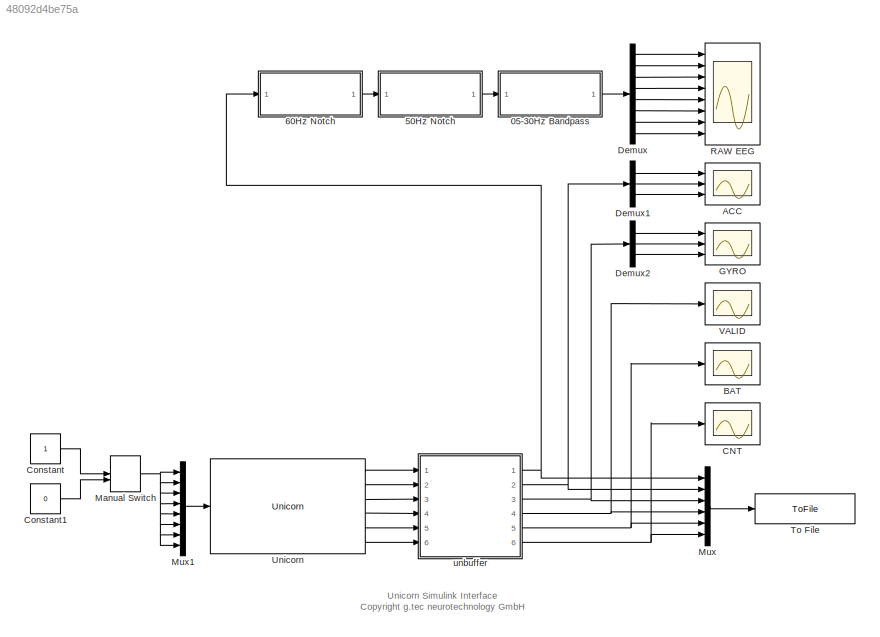
MODEL slx_48092d4be75a
KIND model
CONFIG AbsTol = auto
CONFIG FixedStep = auto
CONFIG MaxStep = auto
CONFIG MinStep = auto
CONFIG RelTol = 1e-3
CONFIG SampleTimeConstraint = Unconstrained
CONFIG Solver = FixedStepDiscrete
CONFIG SolverMode = Auto
CONFIG SolverName = FixedStepDiscrete
CONFIG StartTime = 0.0
CONFIG StopTime = inf
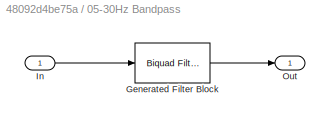
BLOCK [SubSystem] 05-30Hz Bandpass
  CopyFcn = fdesignblkfcn(gcbh, {'CopyFcn'});
  DialogController = fdesignblkfcn
  InitFcn = fdesignblkfcn(gcbh, {'InitFcn'});
  Ports = [1, 1]
  RequestExecContextInheritance = off
  UserDataPersistent = on
BLOCK [Reference] 05-30Hz Bandpass/Generated Filter Block  REF=dsparch4/Biquad Filter
  BiQuadCoeffs = [0.4322526152450743 0 -0.4322526152450743 1 -1.0011806751735479 0.3599418394747359;0.089147308745349971 0 -0.089147308745349971 1 -0.90316691443797437 0.21573805671244461;0.0088211325061849071 0 -0.0088211325061849071 1 -1.9935355151831708 0.99369356215971294;0.012337659349727709 0 -0.012337659349727709 1 -1.9822422643876501 0.98240374527709184;2 0 -2 1 -1.9751756853515128 0.97534142261558909;2 0 ...<+45ch>
  CoeffSource = Specify via dialog
  FilterObject = Hm_biquad
  FilterSource = Specify via dialog
  IC = 0
  ICden = 0
  ICnum = 0
  IIRFiltStruct = Direct form II
  InputProcessing = Elements as channels (sample based)
  LockScale = off
  Ports = [1, 1]
  ScaleValueMode = Specify via input port (g)
  ScaleValues = [0.35278894395693888;1;1;1;1;1;133.18750137787509]
  SourceBlock = dsparch4/Biquad Filter
  SourceType = Biquad Filter
  Tag = BlockMethodSubSystem
  UserDataPersistent = on
  a0Flag = Warning
  accumFracLength = 30
  accumMode = Same as product output
  accumWordLength = 32
  allowOverrides = on
  denAccumFracLength = 30
  denProdOutputFracLength = 30
  firstCoeffFracLength = 15
  firstCoeffMode = Same word length as input
  firstCoeffWordLength = 16
  memoryFracLength = 15
  memoryMode = Same as accumulator
  memoryWordLength = 16
  multiplicandFracLength = 30
  multiplicandMode = Same as output
  multiplicandWordLength = 32
  optimizeScaleValues = on
  outputFracLength = 15
  outputMode = Same as accumulator
  outputWordLength = 16
  overflowMode = off
  prodOutputFracLength = 30
  prodOutputMode = Same as input
  prodOutputWordLength = 32
  roundingMode = Floor
  scaleValueFracLength = 14
  secondCoeffFracLength = 15
  secondCoeffMode = Same as numerator
  secondCoeffWordLength = 16
  secondMemoryFracLength = 15
  stageInputFracLength = 15
  stageInputMode = Same as input
  stageInputWordLength = 16
  stageOutputFracLength = 15
  stageOutputMode = Same as section input
  stageOutputWordLength = 16
BLOCK [Inport] 05-30Hz Bandpass/In
  IconDisplay = Port number
BLOCK [Outport] 05-30Hz Bandpass/Out
  IconDisplay = Port number
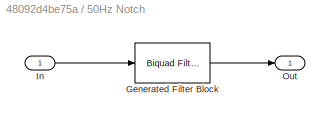
BLOCK [SubSystem] 50Hz Notch
  CopyFcn = fdesignblkfcn(gcbh, {'CopyFcn'});
  DialogController = fdesignblkfcn
  InitFcn = fdesignblkfcn(gcbh, {'InitFcn'});
  Ports = [1, 1]
  RequestExecContextInheritance = off
  UserDataPersistent = on
BLOCK [Reference] 50Hz Notch/Generated Filter Block  REF=dsparch4/Biquad Filter
  BiQuadCoeffs = [2 -1.2376311593598059 1.9999999999999996 1 -0.58917542534408363 0.90420359373902093]
  CoeffSource = Specify via dialog
  FilterObject = Hm_biquad
  FilterSource = Specify via dialog
  IC = 0
  ICden = 0
  ICnum = 0
  IIRFiltStruct = Direct form II
  InputProcessing = Elements as channels (sample based)
  LockScale = off
  Ports = [1, 1]
  ScaleValueMode = Specify via input port (g)
  ScaleValues = [0.091083863875771748;5.226511899890804]
  SourceBlock = dsparch4/Biquad Filter
  SourceType = Biquad Filter
  Tag = BlockMethodSubSystem
  UserDataPersistent = on
  a0Flag = Warning
  accumFracLength = 30
  accumMode = Same as product output
  accumWordLength = 32
  allowOverrides = on
  denAccumFracLength = 30
  denProdOutputFracLength = 30
  firstCoeffFracLength = 15
  firstCoeffMode = Same word length as input
  firstCoeffWordLength = 16
  memoryFracLength = 15
  memoryMode = Same as accumulator
  memoryWordLength = 16
  multiplicandFracLength = 30
  multiplicandMode = Same as output
  multiplicandWordLength = 32
  optimizeScaleValues = on
  outputFracLength = 15
  outputMode = Same as accumulator
  outputWordLength = 16
  overflowMode = off
  prodOutputFracLength = 30
  prodOutputMode = Same as input
  prodOutputWordLength = 32
  roundingMode = Floor
  scaleValueFracLength = 14
  secondCoeffFracLength = 15
  secondCoeffMode = Same as numerator
  secondCoeffWordLength = 16
  secondMemoryFracLength = 15
  stageInputFracLength = 15
  stageInputMode = Same as input
  stageInputWordLength = 16
  stageOutputFracLength = 15
  stageOutputMode = Same as section input
  stageOutputWordLength = 16
BLOCK [Inport] 50Hz Notch/In
  IconDisplay = Port number
BLOCK [Outport] 50Hz Notch/Out
  IconDisplay = Port number
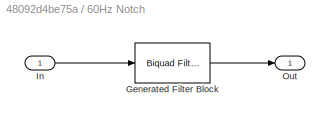
BLOCK [SubSystem] 60Hz Notch
  CopyFcn = fdesignblkfcn(gcbh, {'CopyFcn'});
  DialogController = fdesignblkfcn
  InitFcn = fdesignblkfcn(gcbh, {'InitFcn'});
  Ports = [1, 1]
  RequestExecContextInheritance = off
  UserDataPersistent = on
BLOCK [Reference] 60Hz Notch/Generated Filter Block  REF=dsparch4/Biquad Filter
  BiQuadCoeffs = [1.9999999999999998 -0.25147970790103907 2 1 -0.11971714088439944 0.90420359373902071]
  CoeffSource = Specify via dialog
  FilterObject = Hm_biquad
  FilterSource = Specify via dialog
  IC = 0
  ICden = 0
  ICnum = 0
  IIRFiltStruct = Direct form II
  InputProcessing = Elements as channels (sample based)
  LockScale = off
  Ports = [1, 1]
  ScaleValueMode = Specify via input port (g)
  ScaleValues = [0.095607010933771011;4.9792467496397919]
  SourceBlock = dsparch4/Biquad Filter
  SourceType = Biquad Filter
  Tag = BlockMethodSubSystem
  UserDataPersistent = on
  a0Flag = Warning
  accumFracLength = 30
  accumMode = Same as product output
  accumWordLength = 32
  allowOverrides = on
  denAccumFracLength = 30
  denProdOutputFracLength = 30
  firstCoeffFracLength = 15
  firstCoeffMode = Same word length as input
  firstCoeffWordLength = 16
  memoryFracLength = 15
  memoryMode = Same as accumulator
  memoryWordLength = 16
  multiplicandFracLength = 30
  multiplicandMode = Same as output
  multiplicandWordLength = 32
  optimizeScaleValues = on
  outputFracLength = 15
  outputMode = Same as accumulator
  outputWordLength = 16
  overflowMode = off
  prodOutputFracLength = 30
  prodOutputMode = Same as input
  prodOutputWordLength = 32
  roundingMode = Floor
  scaleValueFracLength = 14
  secondCoeffFracLength = 15
  secondCoeffMode = Same as numerator
  secondCoeffWordLength = 16
  secondMemoryFracLength = 15
  stageInputFracLength = 15
  stageInputMode = Same as input
  stageInputWordLength = 16
  stageOutputFracLength = 15
  stageOutputMode = Same as section input
  stageOutputWordLength = 16
BLOCK [Inport] 60Hz Notch/In
  IconDisplay = Port number
BLOCK [Outport] 60Hz Notch/Out
  IconDisplay = Port number
BLOCK [Scope] ACC 
  Floating = off
  MaxDataPoints = 2500
  NumInputPorts = 3
  Ports = [3]
  SaveName = ScopeData1
  YMax = 10~10~10
  YMin = -10~-10~-10
  ZoomMode = yonly
BLOCK [Scope] BAT
  Floating = off
  MaxDataPoints = 2500
  NumInputPorts = 1
  Ports = [1]
  SaveName = ScopeData4
  YMax = 100
  YMin = 0
  ZoomMode = yonly
BLOCK [Scope] CNT
  Floating = off
  MaxDataPoints = 2500
  NumInputPorts = 1
  Ports = [1]
  SaveName = ScopeData5
  YMax = 2500
  YMin = 0
  ZoomMode = yonly
BLOCK [Constant] Constant
  OutDataTypeStr = boolean
BLOCK [Constant] Constant1
  OutDataTypeStr = boolean
  Value = 0
BLOCK [Demux] Demux
  DisplayOption = bar
  Outputs = 8
  Ports = [1, 8]
BLOCK [Demux] Demux1
  DisplayOption = bar
  Outputs = 3
  Ports = [1, 3]
BLOCK [Demux] Demux2
  DisplayOption = bar
  Outputs = 3
  Ports = [1, 3]
BLOCK [Scope] GYRO
  Floating = off
  MaxDataPoints = 2500
  NumInputPorts = 3
  Ports = [3]
  SaveName = ScopeData2
  YMax = 1000~1000~1000
  YMin = -1000~-1000~-1000
  ZoomMode = yonly
BLOCK [ManualSwitch] Manual Switch
  CurrentSetting = 0
BLOCK [Mux] Mux
  DisplayOption = bar
  Inputs = 6
  Ports = [6, 1]
BLOCK [Mux] Mux1
  DisplayOption = bar
  Inputs = 8
  Ports = [8, 1]
BLOCK [Scope] RAW  EEG
  Floating = off
  MaxDataPoints = 2500
  NumInputPorts = 8
  Ports = [8]
  TickLabels = off
  YMax = -175~-200~150~80~0~500~20~-300
  YMin = -350~-450~10~-50~-140~325~-100~-475
  ZoomMode = yonly
BLOCK [ToFile] To File
  Filename = Unicorn_Data.mat
  MatrixName = y
  Ports = [1]
BLOCK [Reference] Unicorn  REF=UnicornLib/Unicorn
  Ports = [1, 6]
  SourceBlock = UnicornLib/Unicorn
  SourceType = Unicorn
  frame_length = 1
  input_source = Electrode
  old_serial = UN-2016.01.01
  serial = UN-2016.01.01
BLOCK [Scope] VALID
  Floating = off
  MaxDataPoints = 2500
  NumInputPorts = 1
  Ports = [1]
  SaveName = ScopeData3
  YMax = 1
  YMin = 0
  ZoomMode = yonly
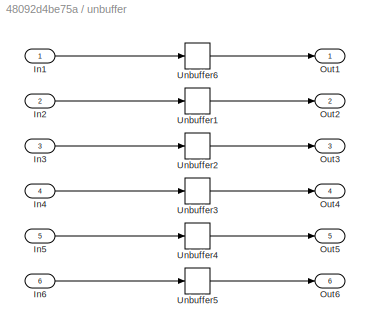
BLOCK [SubSystem] unbuffer 
  Ports = [6, 6]
  RequestExecContextInheritance = off
BLOCK [Inport] unbuffer /In1
  IconDisplay = Port number
BLOCK [Inport] unbuffer /In2
  IconDisplay = Port number
  Port = 2
BLOCK [Inport] unbuffer /In3
  IconDisplay = Port number
  Port = 3
BLOCK [Inport] unbuffer /In4
  IconDisplay = Port number
  Port = 4
BLOCK [Inport] unbuffer /In5
  IconDisplay = Port number
  Port = 5
BLOCK [Inport] unbuffer /In6
  IconDisplay = Port number
  Port = 6
BLOCK [Outport] unbuffer /Out1
  IconDisplay = Port number
BLOCK [Outport] unbuffer /Out2
  IconDisplay = Port number
  Port = 2
BLOCK [Outport] unbuffer /Out3
  IconDisplay = Port number
  Port = 3
BLOCK [Outport] unbuffer /Out4
  IconDisplay = Port number
  Port = 4
BLOCK [Outport] unbuffer /Out5
  IconDisplay = Port number
  Port = 5
BLOCK [Outport] unbuffer /Out6
  IconDisplay = Port number
  Port = 6
BLOCK [Unbuffer] unbuffer /Unbuffer1
  Ports = [1, 1]
BLOCK [Unbuffer] unbuffer /Unbuffer2
  Ports = [1, 1]
BLOCK [Unbuffer] unbuffer /Unbuffer3
  Ports = [1, 1]
BLOCK [Unbuffer] unbuffer /Unbuffer4
  Ports = [1, 1]
BLOCK [Unbuffer] unbuffer /Unbuffer5
  Ports = [1, 1]
BLOCK [Unbuffer] unbuffer /Unbuffer6
  Ports = [1, 1]
ANNOTATION (root): Unicorn Simulink Interface <copyright redacted>
LINE 05-30Hz Bandpass:1 -> Demux:1
LINE 50Hz Notch:1 -> 05-30Hz Bandpass:1
LINE 60Hz Notch:1 -> 50Hz Notch:1
LINE Constant1:1 -> Manual Switch:2
LINE Constant:1 -> Manual Switch:1
LINE Demux1:1 -> ACC :1
LINE Demux1:2 -> ACC :2
LINE Demux1:3 -> ACC :3
LINE Demux2:1 -> GYRO:1
LINE Demux2:2 -> GYRO:2
LINE Demux2:3 -> GYRO:3
LINE Demux:1 -> RAW  EEG:1
LINE Demux:2 -> RAW  EEG:2
LINE Demux:3 -> RAW  EEG:3
LINE Demux:4 -> RAW  EEG:4
LINE Demux:5 -> RAW  EEG:5
LINE Demux:6 -> RAW  EEG:6
LINE Demux:7 -> RAW  EEG:7
LINE Demux:8 -> RAW  EEG:8
NET Manual Switch:1 -> Mux1:1, Mux1:2, Mux1:3, Mux1:4, Mux1:5, Mux1:6, Mux1:7, Mux1:8
LINE Mux1:1 -> Unicorn:1
LINE Mux:1 -> To File:1
LINE Unicorn:1 -> unbuffer :1
LINE Unicorn:2 -> unbuffer :2
LINE Unicorn:3 -> unbuffer :3
LINE Unicorn:4 -> unbuffer :4
LINE Unicorn:5 -> unbuffer :5
LINE Unicorn:6 -> unbuffer :6
LINE unbuffer /In1:1 -> unbuffer /Unbuffer6:1
LINE unbuffer /In2:1 -> unbuffer /Unbuffer1:1
LINE unbuffer /In3:1 -> unbuffer /Unbuffer2:1
LINE unbuffer /In4:1 -> unbuffer /Unbuffer3:1
LINE unbuffer /In5:1 -> unbuffer /Unbuffer4:1
LINE unbuffer /In6:1 -> unbuffer /Unbuffer5:1
LINE unbuffer /Unbuffer1:1 -> unbuffer /Out2:1
LINE unbuffer /Unbuffer2:1 -> unbuffer /Out3:1
LINE unbuffer /Unbuffer3:1 -> unbuffer /Out4:1
LINE unbuffer /Unbuffer4:1 -> unbuffer /Out5:1
LINE unbuffer /Unbuffer5:1 -> unbuffer /Out6:1
LINE unbuffer /Unbuffer6:1 -> unbuffer /Out1:1
NET unbuffer :1 -> 60Hz Notch:1, Mux:1
NET unbuffer :2 -> Demux1:1, Mux:2
NET unbuffer :3 -> Demux2:1, Mux:3
NET unbuffer :4 -> Mux:4, VALID:1
NET unbuffer :5 -> BAT:1, Mux:5
NET unbuffer :6 -> CNT:1, Mux:6
note: NET lines group one-source signal fan-out (src -> all destinations, sorted); 1:1 wires keep LINE
